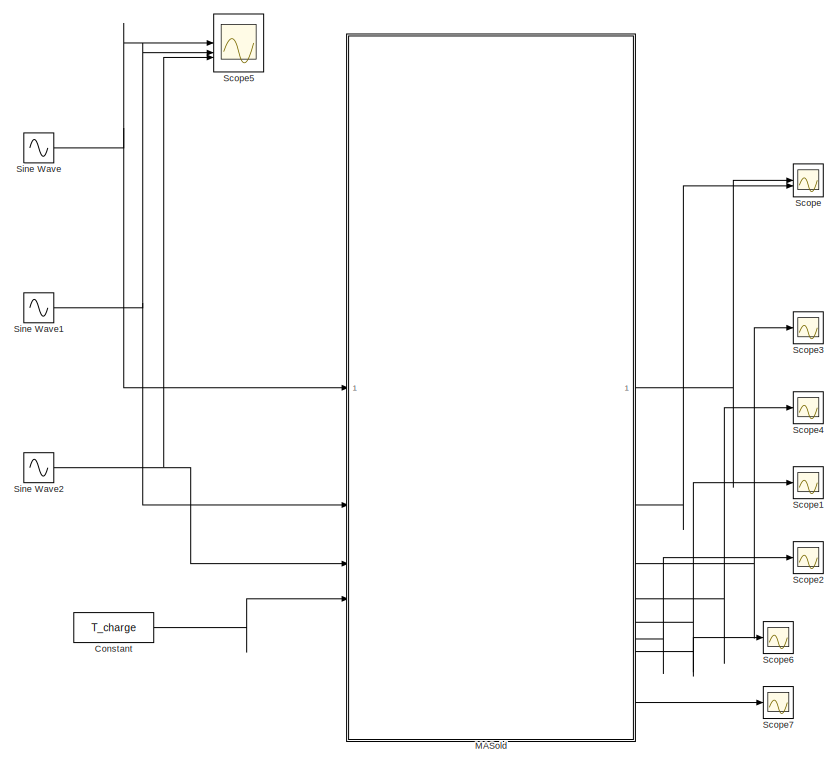
[diagram: root canvas - part 1/2, full width, top band]
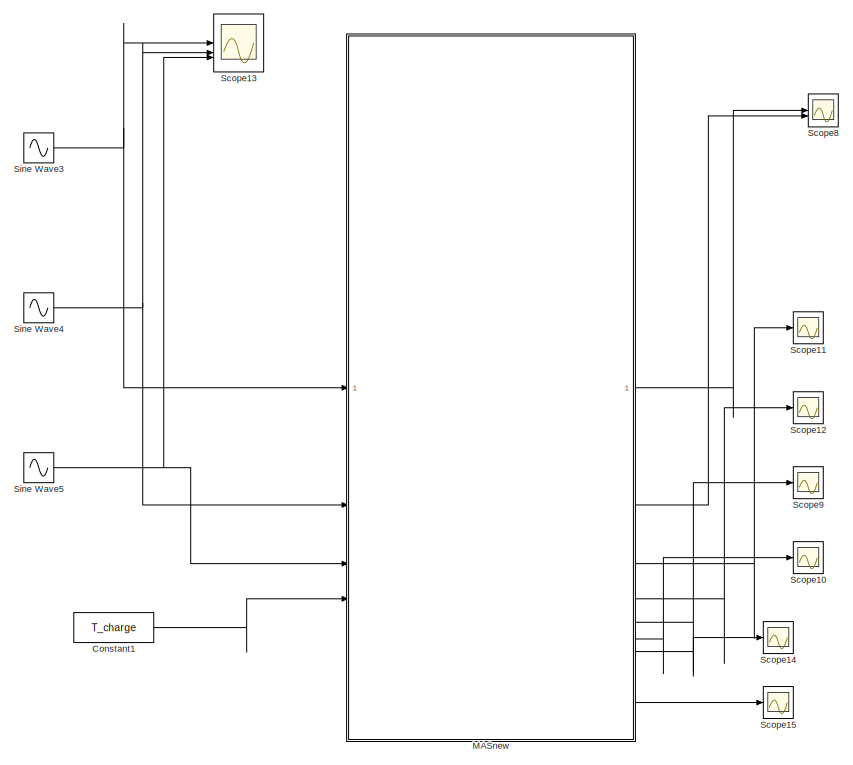
[diagram: root canvas - part 2/2, full width, bottom band]
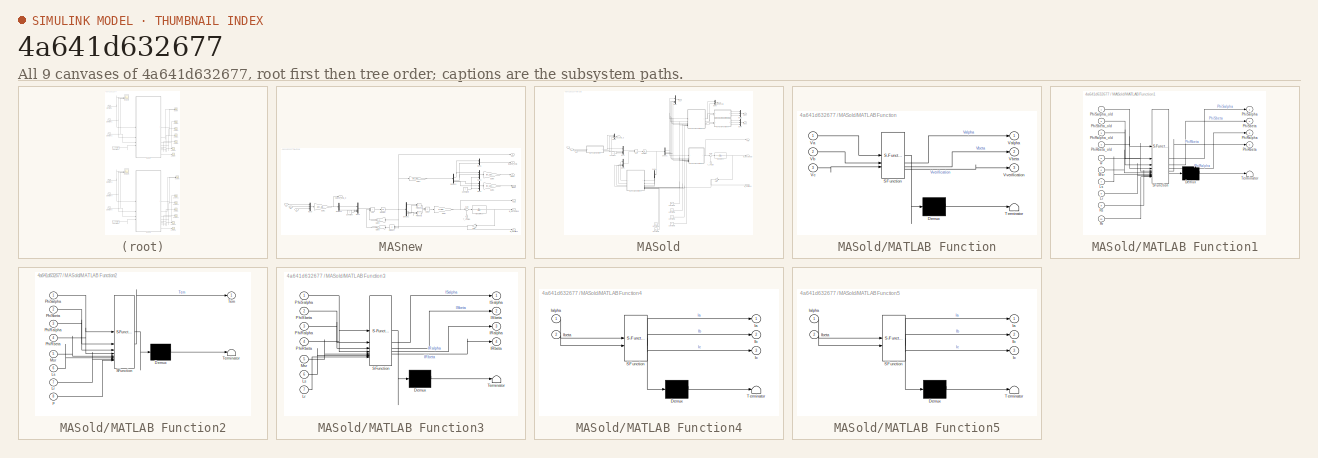
[diagram: thumbnail index - all 9 canvases of the model, root first then tree order]
MODEL slx_4a641d632677
KIND model
CONFIG AbsTol = 1e-5
CONFIG EnableMultiTasking = off
CONFIG FixedStep = 1e-4
CONFIG MaxStep = 1e-4
CONFIG MinStep = 1e-5
CONFIG RelTol = 1e-6
CONFIG SampleTimeConstraint = Unconstrained
CONFIG SolverName = FixedStepAuto
CONFIG StartTime = 0.0
CONFIG StopTime = 1
BLOCK [Constant] Constant
  Value = T_charge
BLOCK [Constant] Constant1
  Value = T_charge
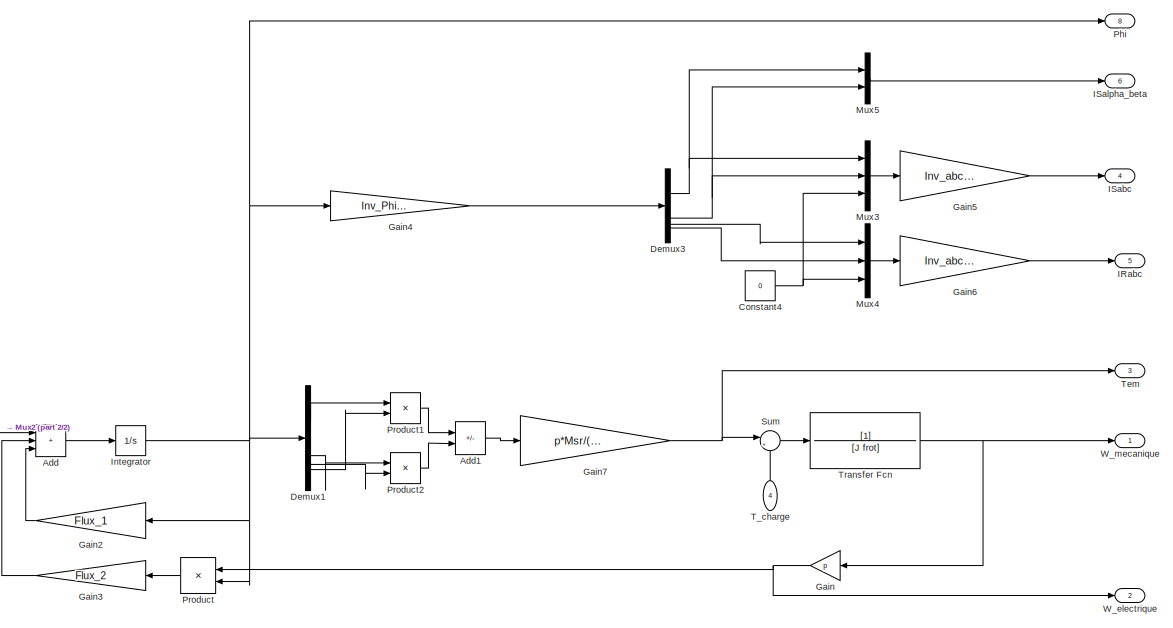
[diagram: MASnew - part 1/2, right side, full height]
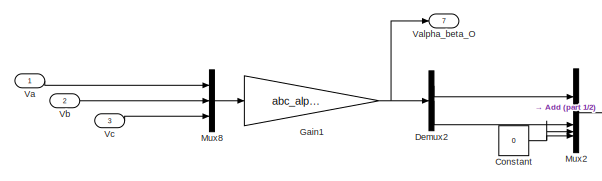
[diagram: MASnew - part 2/2, middle left region]
BLOCK [SubSystem] MASnew
BLOCK [Sum] MASnew/Add
  IconShape = rectangular
  Inputs = +++
BLOCK [Sum] MASnew/Add1
  IconShape = rectangular
  Inputs = +-
BLOCK [Constant] MASnew/Constant
  Value = 0
BLOCK [Constant] MASnew/Constant4
  Value = 0
BLOCK [Demux] MASnew/Demux1
BLOCK [Demux] MASnew/Demux2
  Outputs = 3
BLOCK [Demux] MASnew/Demux3
BLOCK [Gain] MASnew/Gain
  Gain = p
  NameLocation = top
BLOCK [Gain] MASnew/Gain1
  Gain = abc_alpha_beta
  Multiplication = Matrix(K*u)
BLOCK [Gain] MASnew/Gain2
  Gain = Flux_1
  Multiplication = Matrix(K*u)
  NameLocation = top
BLOCK [Gain] MASnew/Gain3
  Gain = Flux_2
  Multiplication = Matrix(K*u)
  NameLocation = top
BLOCK [Gain] MASnew/Gain4
  Gain = Inv_Phi_Courant
  Multiplication = Matrix(K*u)
BLOCK [Gain] MASnew/Gain5
  Gain = Inv_abc_alpha_beta
  Multiplication = Matrix(K*u)
BLOCK [Gain] MASnew/Gain6
  Gain = Inv_abc_alpha_beta
  Multiplication = Matrix(K*u)
BLOCK [Gain] MASnew/Gain7
  Gain = p*Msr/(Msr^2 - Lr*Ls)
BLOCK [Outport] MASnew/IRabc
  Port = 5
BLOCK [Outport] MASnew/ISabc
  Port = 4
BLOCK [Outport] MASnew/ISalpha_beta
  Port = 6
BLOCK [Integrator] MASnew/Integrator
BLOCK [Mux] MASnew/Mux2
  DisplayOption = bar
BLOCK [Mux] MASnew/Mux3
  DisplayOption = bar
  Inputs = 3
BLOCK [Mux] MASnew/Mux4
  DisplayOption = bar
  Inputs = 3
BLOCK [Mux] MASnew/Mux5
  DisplayOption = bar
  Inputs = 2
BLOCK [Mux] MASnew/Mux8
  DisplayOption = bar
  Inputs = 3
BLOCK [Outport] MASnew/Phi
  Port = 8
BLOCK [Product] MASnew/Product
  NameLocation = top
BLOCK [Product] MASnew/Product1
BLOCK [Product] MASnew/Product2
BLOCK [Sum] MASnew/Sum
  Inputs = |+-
BLOCK [Inport] MASnew/T_charge
  NameLocation = right
  Port = 4
BLOCK [Outport] MASnew/Tem
  Port = 3
BLOCK [TransferFcn] MASnew/Transfer Fcn
  Denominator = [J frot]
BLOCK [Inport] MASnew/Va
BLOCK [Outport] MASnew/Valpha_beta_O
  Port = 7
BLOCK [Inport] MASnew/Vb
  Port = 2
BLOCK [Inport] MASnew/Vc
  Port = 3
BLOCK [Outport] MASnew/W_electrique
  Port = 2
BLOCK [Outport] MASnew/W_mecanique
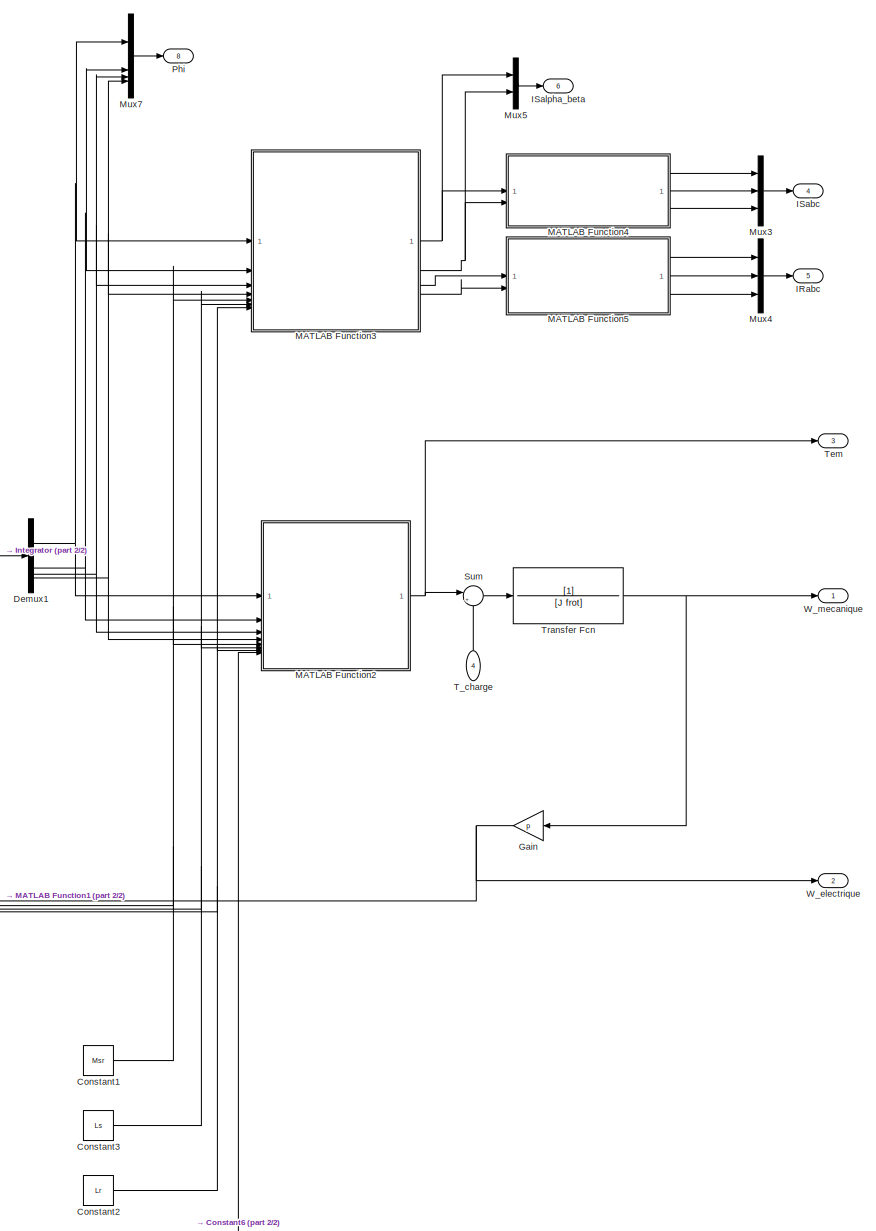
[diagram: MASold - part 1/2, right side, full height]
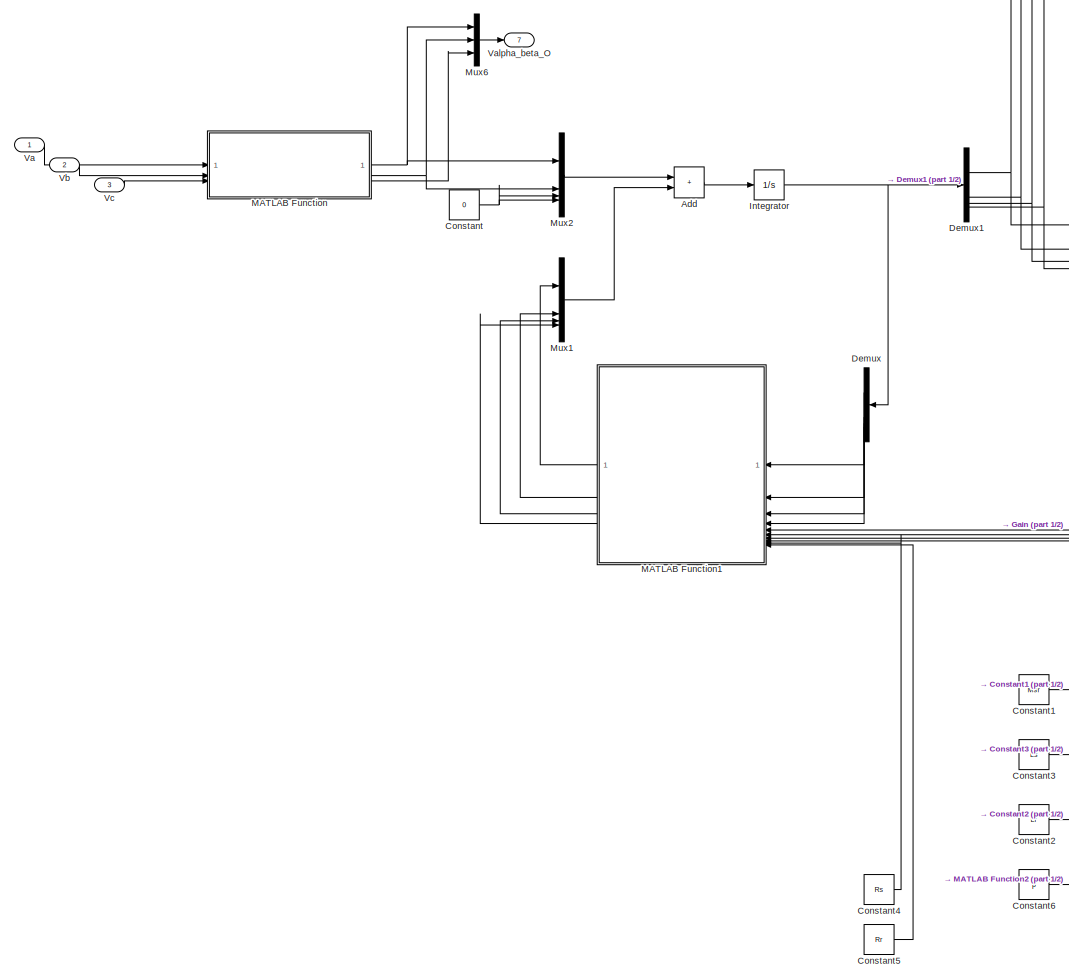
[diagram: MASold - part 2/2, middle left region]
BLOCK [SubSystem] MASold
BLOCK [Sum] MASold/Add
  IconShape = rectangular
BLOCK [Constant] MASold/Constant
  Value = 0
BLOCK [Constant] MASold/Constant1
  Value = Msr
BLOCK [Constant] MASold/Constant2
  Value = Lr
BLOCK [Constant] MASold/Constant3
  Value = Ls
BLOCK [Constant] MASold/Constant4
  Value = Rs
BLOCK [Constant] MASold/Constant5
  Value = Rr
BLOCK [Constant] MASold/Constant6
  Value = p
BLOCK [Demux] MASold/Demux
  NameLocation = top
BLOCK [Demux] MASold/Demux1
BLOCK [Gain] MASold/Gain
  Gain = p
  NameLocation = top
BLOCK [Outport] MASold/IRabc
  Port = 5
BLOCK [Outport] MASold/ISabc
  Port = 4
BLOCK [Outport] MASold/ISalpha_beta
  Port = 6
BLOCK [Integrator] MASold/Integrator
BLOCK [SubSystem] MASold/MATLAB Function
  ErrorFcn = Stateflow.Translate.translate
  LibrarySourceBlock = simulink/User-Defined\nFunctions/MATLAB Function
  PermitHierarchicalResolution = ExplicitOnly
  SFBlockType = MATLAB Function
  TreatAsAtomicUnit = on
BLOCK [Demux] MASold/MATLAB Function/ Demux 
  Outputs = 1
BLOCK [S-Function] MASold/MATLAB Function/ SFunction 
  EnableBusSupport = on
  FunctionName = sf_sfun
  PortCounts = [3 4]
  SFcnIsStateOwnerBlock = off
  SFunctionDeploymentMode = off
  Tag = Stateflow S-Function 2
BLOCK [Terminator] MASold/MATLAB Function/ Terminator 
BLOCK [Inport] MASold/MATLAB Function/Va
BLOCK [Outport] MASold/MATLAB Function/Valpha
BLOCK [Inport] MASold/MATLAB Function/Vb
  Port = 2
BLOCK [Outport] MASold/MATLAB Function/Vbeta
  Port = 2
BLOCK [Inport] MASold/MATLAB Function/Vc
  Port = 3
BLOCK [Outport] MASold/MATLAB Function/Vverification
  Port = 3
BLOCK [SubSystem] MASold/MATLAB Function1
  ErrorFcn = Stateflow.Translate.translate
  LibrarySourceBlock = simulink/User-Defined\nFunctions/MATLAB Function
  NameLocation = top
  PermitHierarchicalResolution = ExplicitOnly
  SFBlockType = MATLAB Function
  TreatAsAtomicUnit = on
BLOCK [Demux] MASold/MATLAB Function1/ Demux 
  Outputs = 1
BLOCK [S-Function] MASold/MATLAB Function1/ SFunction 
  EnableBusSupport = on
  FunctionName = sf_sfun
  PortCounts = [10 5]
  SFcnIsStateOwnerBlock = off
  SFunctionDeploymentMode = off
  Tag = Stateflow S-Function 1
BLOCK [Terminator] MASold/MATLAB Function1/ Terminator 
BLOCK [Inport] MASold/MATLAB Function1/Lr
  Port = 8
BLOCK [Inport] MASold/MATLAB Function1/Ls
  Port = 7
BLOCK [Inport] MASold/MATLAB Function1/Msr
  Port = 6
BLOCK [Outport] MASold/MATLAB Function1/PhiRalpha
  Port = 3
BLOCK [Inport] MASold/MATLAB Function1/PhiRalpha_old
  Port = 3
BLOCK [Outport] MASold/MATLAB Function1/PhiRbeta
  Port = 4
BLOCK [Inport] MASold/MATLAB Function1/PhiRbeta_old
  Port = 4
BLOCK [Outport] MASold/MATLAB Function1/PhiSalpha
BLOCK [Inport] MASold/MATLAB Function1/PhiSalpha_old
BLOCK [Outport] MASold/MATLAB Function1/PhiSbeta
  Port = 2
BLOCK [Inport] MASold/MATLAB Function1/PhiSbeta_old
  Port = 2
BLOCK [Inport] MASold/MATLAB Function1/Rr
  Port = 10
BLOCK [Inport] MASold/MATLAB Function1/Rs
  Port = 9
BLOCK [Inport] MASold/MATLAB Function1/w
  Port = 5
BLOCK [SubSystem] MASold/MATLAB Function2
  ErrorFcn = Stateflow.Translate.translate
  LibrarySourceBlock = simulink/User-Defined\nFunctions/MATLAB Function
  PermitHierarchicalResolution = ExplicitOnly
  SFBlockType = MATLAB Function
  TreatAsAtomicUnit = on
BLOCK [Demux] MASold/MATLAB Function2/ Demux 
  Outputs = 1
BLOCK [S-Function] MASold/MATLAB Function2/ SFunction 
  EnableBusSupport = on
  FunctionName = sf_sfun
  PortCounts = [8 2]
  SFcnIsStateOwnerBlock = off
  SFunctionDeploymentMode = off
  Tag = Stateflow S-Function 3
BLOCK [Terminator] MASold/MATLAB Function2/ Terminator 
BLOCK [Inport] MASold/MATLAB Function2/Lr
  Port = 7
BLOCK [Inport] MASold/MATLAB Function2/Ls
  Port = 6
BLOCK [Inport] MASold/MATLAB Function2/Msr
  Port = 5
BLOCK [Inport] MASold/MATLAB Function2/PhiRalpha
  Port = 3
BLOCK [Inport] MASold/MATLAB Function2/PhiRbeta
  Port = 4
BLOCK [Inport] MASold/MATLAB Function2/PhiSalpha
BLOCK [Inport] MASold/MATLAB Function2/PhiSbeta
  Port = 2
BLOCK [Outport] MASold/MATLAB Function2/Tem
BLOCK [Inport] MASold/MATLAB Function2/p
  Port = 8
BLOCK [SubSystem] MASold/MATLAB Function3
  ErrorFcn = Stateflow.Translate.translate
  LibrarySourceBlock = simulink/User-Defined\nFunctions/MATLAB Function
  PermitHierarchicalResolution = ExplicitOnly
  SFBlockType = MATLAB Function
  TreatAsAtomicUnit = on
BLOCK [Demux] MASold/MATLAB Function3/ Demux 
  Outputs = 1
BLOCK [S-Function] MASold/MATLAB Function3/ SFunction 
  EnableBusSupport = on
  FunctionName = sf_sfun
  PortCounts = [7 5]
  SFcnIsStateOwnerBlock = off
  SFunctionDeploymentMode = off
  Tag = Stateflow S-Function 4
BLOCK [Terminator] MASold/MATLAB Function3/ Terminator 
BLOCK [Outport] MASold/MATLAB Function3/IRalpha
  Port = 3
BLOCK [Outport] MASold/MATLAB Function3/IRbeta
  Port = 4
BLOCK [Outport] MASold/MATLAB Function3/ISalpha
BLOCK [Outport] MASold/MATLAB Function3/ISbeta
  Port = 2
BLOCK [Inport] MASold/MATLAB Function3/Lr
  Port = 7
BLOCK [Inport] MASold/MATLAB Function3/Ls
  Port = 6
BLOCK [Inport] MASold/MATLAB Function3/Msr
  Port = 5
BLOCK [Inport] MASold/MATLAB Function3/PhiRalpha
  Port = 3
BLOCK [Inport] MASold/MATLAB Function3/PhiRbeta
  Port = 4
BLOCK [Inport] MASold/MATLAB Function3/PhiSalpha
BLOCK [Inport] MASold/MATLAB Function3/PhiSbeta
  Port = 2
BLOCK [SubSystem] MASold/MATLAB Function4
  ErrorFcn = Stateflow.Translate.translate
  LibrarySourceBlock = simulink/User-Defined\nFunctions/MATLAB Function
  PermitHierarchicalResolution = ExplicitOnly
  SFBlockType = MATLAB Function
  TreatAsAtomicUnit = on
BLOCK [Demux] MASold/MATLAB Function4/ Demux 
  Outputs = 1
BLOCK [S-Function] MASold/MATLAB Function4/ SFunction 
  EnableBusSupport = on
  FunctionName = sf_sfun
  PortCounts = [2 4]
  SFcnIsStateOwnerBlock = off
  SFunctionDeploymentMode = off
  Tag = Stateflow S-Function 5
BLOCK [Terminator] MASold/MATLAB Function4/ Terminator 
BLOCK [Outport] MASold/MATLAB Function4/Ia
BLOCK [Inport] MASold/MATLAB Function4/Ialpha
BLOCK [Outport] MASold/MATLAB Function4/Ib
  Port = 2
BLOCK [Inport] MASold/MATLAB Function4/Ibeta
  Port = 2
BLOCK [Outport] MASold/MATLAB Function4/Ic
  Port = 3
BLOCK [SubSystem] MASold/MATLAB Function5
  ErrorFcn = Stateflow.Translate.translate
  LibrarySourceBlock = simulink/User-Defined\nFunctions/MATLAB Function
  PermitHierarchicalResolution = ExplicitOnly
  SFBlockType = MATLAB Function
  TreatAsAtomicUnit = on
BLOCK [Demux] MASold/MATLAB Function5/ Demux 
  Outputs = 1
BLOCK [S-Function] MASold/MATLAB Function5/ SFunction 
  EnableBusSupport = on
  FunctionName = sf_sfun
  PortCounts = [2 4]
  SFcnIsStateOwnerBlock = off
  SFunctionDeploymentMode = off
  Tag = Stateflow S-Function 6
BLOCK [Terminator] MASold/MATLAB Function5/ Terminator 
BLOCK [Outport] MASold/MATLAB Function5/Ia
BLOCK [Inport] MASold/MATLAB Function5/Ialpha
BLOCK [Outport] MASold/MATLAB Function5/Ib
  Port = 2
BLOCK [Inport] MASold/MATLAB Function5/Ibeta
  Port = 2
BLOCK [Outport] MASold/MATLAB Function5/Ic
  Port = 3
BLOCK [Mux] MASold/Mux1
  DisplayOption = bar
BLOCK [Mux] MASold/Mux2
  DisplayOption = bar
BLOCK [Mux] MASold/Mux3
  DisplayOption = bar
  Inputs = 3
BLOCK [Mux] MASold/Mux4
  DisplayOption = bar
  Inputs = 3
BLOCK [Mux] MASold/Mux5
  DisplayOption = bar
  Inputs = 2
BLOCK [Mux] MASold/Mux6
  DisplayOption = bar
  Inputs = 3
BLOCK [Mux] MASold/Mux7
  DisplayOption = bar
BLOCK [Outport] MASold/Phi
  Port = 8
BLOCK [Sum] MASold/Sum
  Inputs = |+-
BLOCK [Inport] MASold/T_charge
  NameLocation = right
  Port = 4
BLOCK [Outport] MASold/Tem
  Port = 3
BLOCK [TransferFcn] MASold/Transfer Fcn
  Denominator = [J frot]
BLOCK [Inport] MASold/Va
BLOCK [Outport] MASold/Valpha_beta_O
  Port = 7
BLOCK [Inport] MASold/Vb
  Port = 2
BLOCK [Inport] MASold/Vc
  Port = 3
BLOCK [Outport] MASold/W_electrique
  Port = 2
BLOCK [Outport] MASold/W_mecanique
BLOCK [Scope] Scope
  Floating = off
  NumInputPorts = 2
  ScopeSpecificationString = Simulink.scopes.TimeScopeBlockCfg('CurrentConfiguration', extmgr.ConfigurationSet(extmgr.Configuration('Core','General UI',true),extmgr.Configuration('Core','Source UI',true),extmgr.Configuration('Sources','WiredSimulink',true),extmgr.Configuration('Visuals','Time Domain',true,'SerializedDisplays',{struct('MinYLimReal','-42.82816','MaxYLimReal','385.45343','YLabelReal','','MinYLimMag','0.00000','M...<+1376ch>
BLOCK [Scope] Scope1
  Floating = off
  NumInputPorts = 1
  ScopeSpecificationString = Simulink.scopes.TimeScopeBlockCfg('CurrentConfiguration', extmgr.ConfigurationSet(extmgr.Configuration('Core','General UI',true),extmgr.Configuration('Core','Source UI',true),extmgr.Configuration('Sources','WiredSimulink',true,'DataLoggingVariableName','ScopeData1'),extmgr.Configuration('Visuals','Time Domain',true,'SerializedDisplays',{struct('MinYLimReal','-111.36774','MaxYLimReal','107.21326','...<+1438ch>
BLOCK [Scope] Scope10
  Floating = off
  NumInputPorts = 1
  ScopeSpecificationString = Simulink.scopes.TimeScopeBlockCfg('CurrentConfiguration', extmgr.ConfigurationSet(extmgr.Configuration('Core','General UI',true),extmgr.Configuration('Core','Source UI',true),extmgr.Configuration('Sources','WiredSimulink',true,'DataLoggingVariableName','ScopeData8'),extmgr.Configuration('Visuals','Time Domain',true,'SerializedDisplays',{struct('MinYLimReal','-133.05605','MaxYLimReal','147.68836','...<+1419ch>
BLOCK [Scope] Scope11
  Floating = off
  NumInputPorts = 1
  ScopeSpecificationString = Simulink.scopes.TimeScopeBlockCfg('CurrentConfiguration', extmgr.ConfigurationSet(extmgr.Configuration('Core','General UI',true),extmgr.Configuration('Core','Source UI',true),extmgr.Configuration('Sources','WiredSimulink',true,'DataLoggingVariableName','ScopeData9'),extmgr.Configuration('Visuals','Time Domain',true,'SerializedDisplays',{struct('MinYLimReal','-226.73125','MaxYLimReal','404.37722','...<+1451ch>
BLOCK [Scope] Scope12
  Floating = off
  NumInputPorts = 1
  ScopeSpecificationString = Simulink.scopes.TimeScopeBlockCfg('CurrentConfiguration', extmgr.ConfigurationSet(extmgr.Configuration('Core','General UI',true),extmgr.Configuration('Core','Source UI',true),extmgr.Configuration('Sources','WiredSimulink',true,'DataLoggingVariableName','ScopeData10'),extmgr.Configuration('Visuals','Time Domain',true,'SerializedDisplays',{struct('MinYLimReal','-113.35492','MaxYLimReal','121.11094',...<+1430ch>
BLOCK [Scope] Scope13
  Floating = off
  NumInputPorts = 3
  ScopeSpecificationString = Simulink.scopes.TimeScopeBlockCfg('CurrentConfiguration', extmgr.ConfigurationSet(extmgr.Configuration('Core','General UI',true),extmgr.Configuration('Core','Source UI',true),extmgr.Configuration('Sources','WiredSimulink',true,'DataLoggingVariableName','ScopeData11'),extmgr.Configuration('Visuals','Time Domain',true,'SerializedDisplays',{struct('MinYLimReal','-475.00000','MaxYLimReal','475.00000',...<+1509ch>
BLOCK [Scope] Scope14
  Floating = off
  NumInputPorts = 1
  ScopeSpecificationString = Simulink.scopes.TimeScopeBlockCfg('CurrentConfiguration', extmgr.ConfigurationSet(extmgr.Configuration('Core','General UI',true),extmgr.Configuration('Core','Source UI',true),extmgr.Configuration('Sources','WiredSimulink',true,'DataLoggingVariableName','ScopeData12'),extmgr.Configuration('Visuals','Time Domain',true,'SerializedDisplays',{struct('MinYLimReal','-581.75381','MaxYLimReal','581.75381',...<+1484ch>
BLOCK [Scope] Scope15
  Floating = off
  NumInputPorts = 1
  ScopeSpecificationString = Simulink.scopes.TimeScopeBlockCfg('CurrentConfiguration', extmgr.ConfigurationSet(extmgr.Configuration('Core','General UI',true),extmgr.Configuration('Core','Source UI',true),extmgr.Configuration('Sources','WiredSimulink',true,'DataLoggingVariableName','ScopeData13'),extmgr.Configuration('Visuals','Time Domain',true,'SerializedDisplays',{struct('MinYLimReal','-2.00007','MaxYLimReal','2.3222','YLab...<+1475ch>
BLOCK [Scope] Scope2
  Floating = off
  NumInputPorts = 1
  ScopeSpecificationString = Simulink.scopes.TimeScopeBlockCfg('CurrentConfiguration', extmgr.ConfigurationSet(extmgr.Configuration('Core','General UI',true),extmgr.Configuration('Core','Source UI',true),extmgr.Configuration('Sources','WiredSimulink',true,'DataLoggingVariableName','ScopeData2'),extmgr.Configuration('Visuals','Time Domain',true,'SerializedDisplays',{struct('MinYLimReal','-133.05605','MaxYLimReal','147.68836','...<+1425ch>
BLOCK [Scope] Scope3
  Floating = off
  NumInputPorts = 1
  ScopeSpecificationString = Simulink.scopes.TimeScopeBlockCfg('CurrentConfiguration', extmgr.ConfigurationSet(extmgr.Configuration('Core','General UI',true),extmgr.Configuration('Core','Source UI',true),extmgr.Configuration('Sources','WiredSimulink',true,'DataLoggingVariableName','ScopeData3'),extmgr.Configuration('Visuals','Time Domain',true,'SerializedDisplays',{struct('MinYLimReal','-226.73125','MaxYLimReal','404.37722','...<+1454ch>
BLOCK [Scope] Scope4
  Floating = off
  NumInputPorts = 1
  ScopeSpecificationString = Simulink.scopes.TimeScopeBlockCfg('CurrentConfiguration', extmgr.ConfigurationSet(extmgr.Configuration('Core','General UI',true),extmgr.Configuration('Core','Source UI',true),extmgr.Configuration('Sources','WiredSimulink',true,'DataLoggingVariableName','ScopeData4'),extmgr.Configuration('Visuals','Time Domain',true,'SerializedDisplays',{struct('MinYLimReal','-113.35492','MaxYLimReal','121.11094','...<+1438ch>
BLOCK [Scope] Scope5
  Floating = off
  NumInputPorts = 3
  ScopeSpecificationString = Simulink.scopes.TimeScopeBlockCfg('CurrentConfiguration', extmgr.ConfigurationSet(extmgr.Configuration('Core','General UI',true),extmgr.Configuration('Core','Source UI',true),extmgr.Configuration('Sources','WiredSimulink',true,'DataLoggingVariableName','ScopeData5'),extmgr.Configuration('Visuals','Time Domain',true,'SerializedDisplays',{struct('MinYLimReal','-475.00000','MaxYLimReal','475.00000','...<+1481ch>
BLOCK [Scope] Scope6
  Floating = off
  NumInputPorts = 1
  ScopeSpecificationString = Simulink.scopes.TimeScopeBlockCfg('CurrentConfiguration', extmgr.ConfigurationSet(extmgr.Configuration('Core','General UI',true),extmgr.Configuration('Core','Source UI',true),extmgr.Configuration('Sources','WiredSimulink',true,'DataLoggingVariableName','ScopeData6'),extmgr.Configuration('Visuals','Time Domain',true,'SerializedDisplays',{struct('MinYLimReal','-581.75381','MaxYLimReal','581.75381','...<+1455ch>
BLOCK [Scope] Scope7
  Floating = off
  NumInputPorts = 1
  ScopeSpecificationString = Simulink.scopes.TimeScopeBlockCfg('CurrentConfiguration', extmgr.ConfigurationSet(extmgr.Configuration('Core','General UI',true),extmgr.Configuration('Core','Source UI',true),extmgr.Configuration('Sources','WiredSimulink',true,'DataLoggingVariableName','ScopeData7'),extmgr.Configuration('Visuals','Time Domain',true,'SerializedDisplays',{struct('MinYLimReal','-2.00007','MaxYLimReal','2.3222','YLabe...<+1450ch>
BLOCK [Scope] Scope8
  Floating = off
  NumInputPorts = 2
  ScopeSpecificationString = Simulink.scopes.TimeScopeBlockCfg('CurrentConfiguration', extmgr.ConfigurationSet(extmgr.Configuration('Core','General UI',true),extmgr.Configuration('Core','Source UI',true),extmgr.Configuration('Sources','WiredSimulink',true,'DataLoggingVariableName','ScopeData14'),extmgr.Configuration('Visuals','Time Domain',true,'SerializedDisplays',{struct('MinYLimReal','-42.82816','MaxYLimReal','385.45343','...<+1417ch>
BLOCK [Scope] Scope9
  Floating = off
  NumInputPorts = 1
  ScopeSpecificationString = Simulink.scopes.TimeScopeBlockCfg('CurrentConfiguration', extmgr.ConfigurationSet(extmgr.Configuration('Core','General UI',true),extmgr.Configuration('Core','Source UI',true),extmgr.Configuration('Sources','WiredSimulink',true,'DataLoggingVariableName','ScopeData15'),extmgr.Configuration('Visuals','Time Domain',true,'SerializedDisplays',{struct('MinYLimReal','-111.36774','MaxYLimReal','107.21326',...<+1430ch>
BLOCK [Sin] Sine Wave
  Amplitude = Vn
  Frequency = 50*2*pi
  SampleTime = 0
BLOCK [Sin] Sine Wave1
  Amplitude = Vn
  Frequency = 50*2*pi
  Phase = -2*pi/3
  SampleTime = 0
BLOCK [Sin] Sine Wave2
  Amplitude = Vn
  Frequency = 50*2*pi
  Phase = -4*pi/3
  SampleTime = 0
BLOCK [Sin] Sine Wave3
  Amplitude = Vn
  Frequency = 50*2*pi
  SampleTime = 0
BLOCK [Sin] Sine Wave4
  Amplitude = Vn
  Frequency = 50*2*pi
  Phase = -2*pi/3
  SampleTime = 0
BLOCK [Sin] Sine Wave5
  Amplitude = Vn
  Frequency = 50*2*pi
  Phase = -4*pi/3
  SampleTime = 0
LINE Constant1:1 -> MASnew:4
LINE Constant:1 -> MASold:4
LINE MASnew/Add1:1 -> MASnew/Gain7:1
LINE MASnew/Add:1 -> MASnew/Integrator:1
NET MASnew/Constant4:1 -> MASnew/Mux3:3, MASnew/Mux4:3
NET MASnew/Constant:1 -> MASnew/Mux2:3, MASnew/Mux2:4
LINE MASnew/Demux1:1 -> MASnew/Product1:1
LINE MASnew/Demux1:2 -> MASnew/Product2:1
LINE MASnew/Demux1:3 -> MASnew/Product2:2
LINE MASnew/Demux1:4 -> MASnew/Product1:2
LINE MASnew/Demux2:1 -> MASnew/Mux2:1
LINE MASnew/Demux2:2 -> MASnew/Mux2:2
NET MASnew/Demux3:1 -> MASnew/Mux3:1, MASnew/Mux5:1
NET MASnew/Demux3:2 -> MASnew/Mux3:2, MASnew/Mux5:2
LINE MASnew/Demux3:3 -> MASnew/Mux4:1
LINE MASnew/Demux3:4 -> MASnew/Mux4:2
NET MASnew/Gain1:1 -> MASnew/Demux2:1, MASnew/Valpha_beta_O:1
LINE MASnew/Gain2:1 -> MASnew/Add:3
LINE MASnew/Gain3:1 -> MASnew/Add:2
LINE MASnew/Gain4:1 -> MASnew/Demux3:1
LINE MASnew/Gain5:1 -> MASnew/ISabc:1
LINE MASnew/Gain6:1 -> MASnew/IRabc:1
NET MASnew/Gain7:1 -> MASnew/Sum:1, MASnew/Tem:1
NET MASnew/Gain:1 -> MASnew/Product:1, MASnew/W_electrique:1
NET MASnew/Integrator:1 -> MASnew/Demux1:1, MASnew/Gain2:1, MASnew/Gain4:1, MASnew/Phi:1, MASnew/Product:2
LINE MASnew/Mux2:1 -> MASnew/Add:1
LINE MASnew/Mux3:1 -> MASnew/Gain5:1
LINE MASnew/Mux4:1 -> MASnew/Gain6:1
LINE MASnew/Mux5:1 -> MASnew/ISalpha_beta:1
LINE MASnew/Mux8:1 -> MASnew/Gain1:1
LINE MASnew/Product1:1 -> MASnew/Add1:1
LINE MASnew/Product2:1 -> MASnew/Add1:2
LINE MASnew/Product:1 -> MASnew/Gain3:1
LINE MASnew/Sum:1 -> MASnew/Transfer Fcn:1
LINE MASnew/T_charge:1 -> MASnew/Sum:2
NET MASnew/Transfer Fcn:1 -> MASnew/Gain:1, MASnew/W_mecanique:1
LINE MASnew/Va:1 -> MASnew/Mux8:1
LINE MASnew/Vb:1 -> MASnew/Mux8:2
LINE MASnew/Vc:1 -> MASnew/Mux8:3
LINE MASnew:1 -> Scope8:1
LINE MASnew:2 -> Scope8:2
LINE MASnew:3 -> Scope11:1
LINE MASnew:4 -> Scope12:1
LINE MASnew:5 -> Scope9:1
LINE MASnew:6 -> Scope10:1
LINE MASnew:7 -> Scope14:1
LINE MASnew:8 -> Scope15:1
LINE MASold/Add:1 -> MASold/Integrator:1
NET MASold/Constant1:1 -> MASold/MATLAB Function1:6, MASold/MATLAB Function2:5, MASold/MATLAB Function3:5
NET MASold/Constant2:1 -> MASold/MATLAB Function1:8, MASold/MATLAB Function2:7, MASold/MATLAB Function3:7
NET MASold/Constant3:1 -> MASold/MATLAB Function1:7, MASold/MATLAB Function2:6, MASold/MATLAB Function3:6
LINE MASold/Constant4:1 -> MASold/MATLAB Function1:9
LINE MASold/Constant5:1 -> MASold/MATLAB Function1:10
LINE MASold/Constant6:1 -> MASold/MATLAB Function2:8
NET MASold/Constant:1 -> MASold/Mux2:3, MASold/Mux2:4
NET MASold/Demux1:1 -> MASold/MATLAB Function2:1, MASold/MATLAB Function3:1, MASold/Mux7:1
NET MASold/Demux1:2 -> MASold/MATLAB Function2:2, MASold/MATLAB Function3:2, MASold/Mux7:2
NET MASold/Demux1:3 -> MASold/MATLAB Function2:3, MASold/MATLAB Function3:3, MASold/Mux7:3
NET MASold/Demux1:4 -> MASold/MATLAB Function2:4, MASold/MATLAB Function3:4, MASold/Mux7:4
LINE MASold/Demux:1 -> MASold/MATLAB Function1:1
LINE MASold/Demux:2 -> MASold/MATLAB Function1:2
LINE MASold/Demux:3 -> MASold/MATLAB Function1:3
LINE MASold/Demux:4 -> MASold/MATLAB Function1:4
NET MASold/Gain:1 -> MASold/MATLAB Function1:5, MASold/W_electrique:1
NET MASold/Integrator:1 -> MASold/Demux1:1, MASold/Demux:1
LINE MASold/MATLAB Function1:1 -> MASold/Mux1:1
LINE MASold/MATLAB Function1:2 -> MASold/Mux1:2
LINE MASold/MATLAB Function1:3 -> MASold/Mux1:3
LINE MASold/MATLAB Function1:4 -> MASold/Mux1:4
NET MASold/MATLAB Function2:1 -> MASold/Sum:1, MASold/Tem:1
NET MASold/MATLAB Function3:1 -> MASold/MATLAB Function4:1, MASold/Mux5:1
NET MASold/MATLAB Function3:2 -> MASold/MATLAB Function4:2, MASold/Mux5:2
LINE MASold/MATLAB Function3:3 -> MASold/MATLAB Function5:1
LINE MASold/MATLAB Function3:4 -> MASold/MATLAB Function5:2
LINE MASold/MATLAB Function4:1 -> MASold/Mux3:1
LINE MASold/MATLAB Function4:2 -> MASold/Mux3:2
LINE MASold/MATLAB Function4:3 -> MASold/Mux3:3
LINE MASold/MATLAB Function5:1 -> MASold/Mux4:1
LINE MASold/MATLAB Function5:2 -> MASold/Mux4:2
LINE MASold/MATLAB Function5:3 -> MASold/Mux4:3
NET MASold/MATLAB Function:1 -> MASold/Mux2:1, MASold/Mux6:1
NET MASold/MATLAB Function:2 -> MASold/Mux2:2, MASold/Mux6:2
LINE MASold/MATLAB Function:3 -> MASold/Mux6:3
LINE MASold/Mux1:1 -> MASold/Add:2
LINE MASold/Mux2:1 -> MASold/Add:1
LINE MASold/Mux3:1 -> MASold/ISabc:1
LINE MASold/Mux4:1 -> MASold/IRabc:1
LINE MASold/Mux5:1 -> MASold/ISalpha_beta:1
LINE MASold/Mux6:1 -> MASold/Valpha_beta_O:1
LINE MASold/Mux7:1 -> MASold/Phi:1
LINE MASold/Sum:1 -> MASold/Transfer Fcn:1
LINE MASold/T_charge:1 -> MASold/Sum:2
NET MASold/Transfer Fcn:1 -> MASold/Gain:1, MASold/W_mecanique:1
LINE MASold/Va:1 -> MASold/MATLAB Function:1
LINE MASold/Vb:1 -> MASold/MATLAB Function:2
LINE MASold/Vc:1 -> MASold/MATLAB Function:3
LINE MASold:1 -> Scope:1
LINE MASold:2 -> Scope:2
LINE MASold:3 -> Scope3:1
LINE MASold:4 -> Scope4:1
LINE MASold:5 -> Scope1:1
LINE MASold:6 -> Scope2:1
LINE MASold:7 -> Scope6:1
LINE MASold:8 -> Scope7:1
NET Sine Wave1:1 -> MASold:2, Scope5:2
NET Sine Wave2:1 -> MASold:3, Scope5:3
NET Sine Wave3:1 -> MASnew:1, Scope13:1
NET Sine Wave4:1 -> MASnew:2, Scope13:2
NET Sine Wave5:1 -> MASnew:3, Scope13:3
NET Sine Wave:1 -> MASold:1, Scope5:1
note: NET lines group one-source signal fan-out (src -> all destinations, sorted); 1:1 wires keep LINE
CHART MASold/MATLAB Function1 states=1 transitions=1
  STATE_LABEL 'eML_blk_kernel()'
  STATE_LABEL 'SCRIPT:\nfunction [PhiSalpha,PhiSbeta,PhiRalpha,PhiRbeta] =Flux_Flux(PhiSalpha_old,PhiSbeta_old,PhiRalpha_old,PhiRbeta_old,w, Msr, Ls, Lr, Rs, Rr)\n\n    PHI=[PhiSalpha_old;PhiSbeta_old;PhiRalpha_old;PhiRbeta_old];\n    % Matrice de transformation\n    transformation_matrix = 1/(Msr^2 - Ls * Lr )  * [Rs*Lr, 0, -Rs*Msr, 0;\n                                                    0, Rs*Lr, 0, -Rs*Msr;\n       ...<+404ch>'
CHART MASold/MATLAB Function states=1 transitions=1
  STATE_LABEL 'eML_blk_kernel()'
  STATE_LABEL "SCRIPT:\nfunction [Valpha, Vbeta, Vverification] = abc_alpha_beta(Va, Vb, Vc)\n    % Entrée : Va, Vb, Vc (les tensions de phase)\n    % Sortie : Valpha, Vbeta, Vverification (les tensions transformées)\n    \n    % Vecteur de tensions d'entrée\n    V = [Va; Vb; Vc];\n    \n    % Matrice de transformation\n    transformation_matrix = sqrt(2/3) * [1 -1/2 -1/2;\n                                          0 sqrt...<+296ch>"
CHART MASold/MATLAB Function2 states=1 transitions=1
  STATE_LABEL 'eML_blk_kernel()'
  STATE_LABEL 'SCRIPT:\nfunction Tem = Couple_em(PhiSalpha,PhiSbeta,PhiRalpha,PhiRbeta, Msr, Ls, Lr,p)\n\nTem = p*Msr/(Msr^2 - Lr*Ls)*(PhiSalpha * PhiRbeta - PhiRalpha * PhiSbeta);\nend'
CHART MASold/MATLAB Function3 states=1 transitions=1
  STATE_LABEL 'eML_blk_kernel()'
  STATE_LABEL "SCRIPT:\nfunction [ISalpha, ISbeta, IRalpha, IRbeta] = Phi_Courant(PhiSalpha, PhiSbeta, PhiRalpha, PhiRbeta, Msr, Ls, Lr)\n    % Entrée : \n    % PhiSalpha, PhiSbeta, PhiRalpha, PhiRbeta (flux)\n    % Ls : inductance statorique\n    % Lr : inductance rotorique\n    % Msr : inductance mutuelle entre stator et rotor\n\n    % Vecteur des flux d'entrée\n    Phi = [PhiSalpha; PhiSbeta; PhiRalpha; PhiRbeta];\n\n  ...<+536ch>"
CHART MASold/MATLAB Function4 states=1 transitions=1
  STATE_LABEL 'eML_blk_kernel()'
  STATE_LABEL "SCRIPT:\nfunction [Ia, Ib, Ic] = alpha_beta_abc(Ialpha, Ibeta)\n\n    % Vecteur de courants d'entrée (ajout de Io = 0 pour compléter le vecteur)\n    I = [Ialpha; Ibeta; 0];\n    \n    % Matrice de transformation (de abc à alpha-beta)\n    transformation_matrix = sqrt(2/3) * [1, -1/2, -1/2;\n                                          0, sqrt(3)/2, -sqrt(3)/2;\n                                          1/sqr...<+268ch>"
CHART MASold/MATLAB Function5 states=1 transitions=1
  STATE_LABEL 'eML_blk_kernel()'
  STATE_LABEL "SCRIPT:\nfunction [Ia, Ib, Ic] = alpha_beta_abc(Ialpha, Ibeta)\n\n    % Vecteur de courants d'entrée (ajout de Io = 0 pour compléter le vecteur)\n    I = [Ialpha; Ibeta; 0];\n    \n    % Matrice de transformation (de abc à alpha-beta)\n    transformation_matrix = sqrt(2/3) * [1, -1/2, -1/2;\n                                          0, sqrt(3)/2, -sqrt(3)/2;\n                                          1/sqr...<+268ch>"
CHART  states=0 transitions=0
CHART  states=0 transitions=0
CHART  states=0 transitions=0
CHART  states=0 transitions=0
CHART  states=0 transitions=0
CHART  states=0 transitions=0
